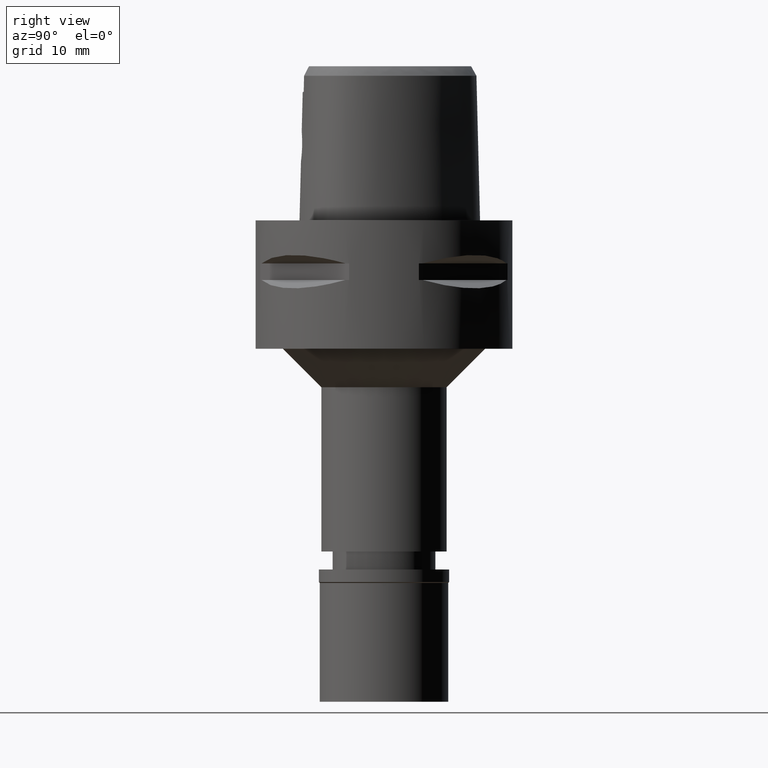
[diagram: clean part render]
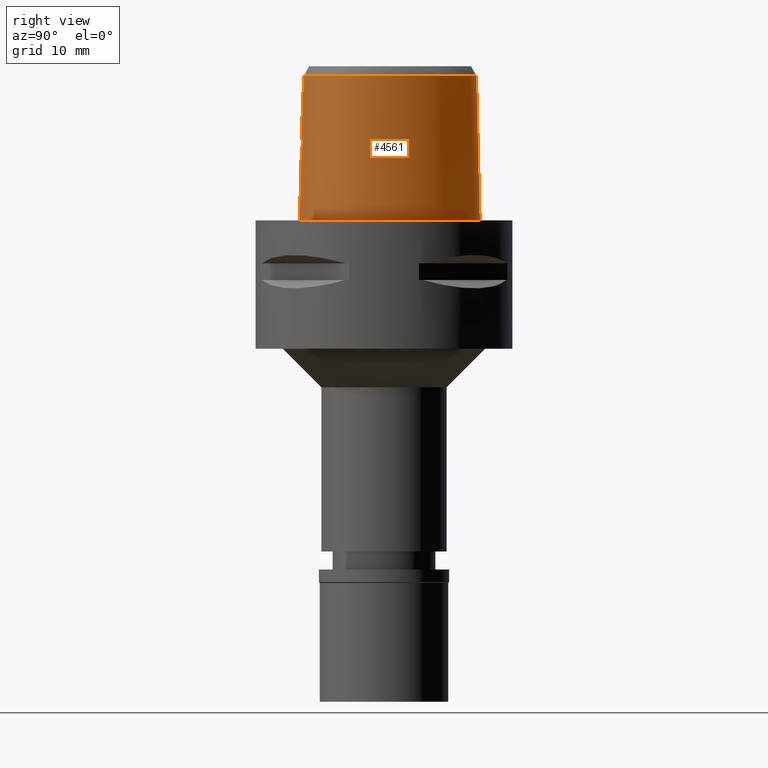
[diagram: same view with one face highlighted and labeled with its STEP entity id]
A machine part, right view. The second image highlights one B-rep face of the part: STEP entity #4561.
In plain terms, the highlighted face is a freeform B-spline surface patch.
Its self-contained STEP definition (entity closure, byte-faithful):
#19 = CARTESIAN_POINT ( 'NONE',  ( 13.62540811550000086, -0.2530730936667999753, 15.16397877979999897 ) ) ;
#32 = CARTESIAN_POINT ( 'NONE',  ( 10.46238780066600249, -9.543612998139392900, 22.52071729251863985 ) ) ;
#38 = CARTESIAN_POINT ( 'NONE',  ( 1.594059758625000267, 14.66589046200000190, 7.356781784261000823 ) ) ;
#50 = CARTESIAN_POINT ( 'NONE',  ( 3.782076377241596621, 14.19393594484588661, -3.214111920948718726E-07 ) ) ;
#93 = CARTESIAN_POINT ( 'NONE',  ( 12.52522393408639800, -8.173666410984072428, -3.214111920948718726E-07 ) ) ;
#149 = DIRECTION ( 'NONE',  ( 9.105538972004151152E-12, 0.02499051293209040084, -0.9996876883624159493 ) ) ;
#162 = CARTESIAN_POINT ( 'NONE',  ( 2.043463385705228230, -12.80871364514175781, 10.44374245704669946 ) ) ;
#167 = B_SPLINE_CURVE_WITH_KNOTS ( 'NONE', 3,
 ( #406, #4119, #1486, #2267, #1163, #3740, #1867, #93, #4074, #1534, #3360, #2637, #454, #1553, #4419, #3007, #1118, #3334, #50, #4485, #2241, #2987 ),
 .UNSPECIFIED., .F., .F.,
 ( 4, 1, 1, 1, 1, 1, 1, 1, 1, 1, 1, 1, 1, 1, 1, 1, 1, 1, 1, 4 ),
 ( 0.0000000000000000000, 0.08333333333314001112, 0.1666666666663000063, 0.2083333333328000192, 0.2499999999994000077, 0.2916666666659999962, 0.3124999999992999489, 0.3333333333325000369, 0.3541666666659000207, 0.3749999999990999977, 0.4166666666657000140, 0.4583333333321999992, 0.4999999999987999599, 0.5833333333318999614, 0.6666666666650999939, 0.7499999999983000265, 0.8333333333314000280, 0.9166666666646000605, 0.9583333333311000457, 1.000000000000000000 ),
 .UNSPECIFIED. ) ;
#177 = FACE_OUTER_BOUND ( 'NONE', #3406, .T. ) ;
#186 = CARTESIAN_POINT ( 'NONE',  ( -2.542051592981999524E-14, -12.93301545397000041, 9.199999999999999289 ) ) ;
#225 = CARTESIAN_POINT ( 'NONE',  ( -2.542051592981999524E-14, -12.93301545397000041, 9.199999999999999289 ) ) ;
#234 = CARTESIAN_POINT ( 'NONE',  ( 10.57640493357000011, -9.688930309367000504, 15.16397877979999897 ) ) ;
#257 = CARTESIAN_POINT ( 'NONE',  ( 1.039641961770999989, -12.80928545993999990, 15.16397877979999897 ) ) ;
#287 = CARTESIAN_POINT ( 'NONE',  ( 13.56059772727000023, -5.684126903878000903, 7.356781784261000823 ) ) ;
#326 = CARTESIAN_POINT ( 'NONE',  ( -0.2827498942773000179, 14.38452206130000022, 22.97117577534999810 ) ) ;
#351 = CARTESIAN_POINT ( 'NONE',  ( 13.87311580918000153, -4.342650423365999934, 7.356781784261000823 ) ) ;
#372 = ORIENTED_EDGE ( 'NONE', *, *, #1592, .F. ) ;
#373 = CARTESIAN_POINT ( 'NONE',  ( 1.636146738088311459, -12.77533106805134011, 13.11651252606773888 ) ) ;
#391 = B_SPLINE_SURFACE_WITH_KNOTS ( 'NONE', 3, 3, ( 
 ( #4286, #1671, #586, #4595 ),
 ( #3548, #1639, #1299, #936 ),
 ( #2754, #661, #257, #3877 ),
 ( #4673, #1323, #992, #2445 ),
 ( #914, #4569, #4258, #2093 ),
 ( #1276, #2730, #3924, #2393 ),
 ( #2048, #3524, #234, #612 ),
 ( #2369, #1381, #3849, #2834 ),
 ( #4307, #1717, #969, #2072 ),
 ( #557, #3177, #1696, #3154 ),
 ( #4618, #2017, #4646, #1355 ),
 ( #3573, #287, #1014, #2115 ),
 ( #2466, #351, #1430, #4063 ),
 ( #4009, #723, #1062, #395 ),
 ( #2212, #3687, #19, #2513 ),
 ( #1082, #1473, #3989, #3620 ),
 ( #1858, #2535, #2924, #1040 ),
 ( #2584, #3226, #1132, #3323 ),
 ( #701, #1455, #1790, #3249 ),
 ( #3967, #4714, #1768, #2489 ),
 ( #1818, #38, #2882, #680 ),
 ( #1403, #2191, #4356, #4693 ),
 ( #2159, #3278, #2855, #326 ),
 ( #3669, #1500, #768, #4403 ) ),
 .UNSPECIFIED., .F., .F., .F.,
 ( 4, 1, 1, 1, 1, 1, 1, 1, 1, 1, 1, 1, 1, 1, 1, 1, 1, 1, 1, 1, 1, 4 ),
 ( 4, 4 ),
 ( -0.01796457239586999807, 0.0000000000000000000, 0.08333333333314001112, 0.1666666666663000063, 0.2083333333328000192, 0.2499999999994000077, 0.2916666666659999962, 0.3124999999992999489, 0.3333333333325000369, 0.3541666666659000207, 0.3749999999990999977, 0.4166666666657000140, 0.4583333333321999992, 0.4999999999987999599, 0.5833333333318999614, 0.6666666666650999939, 0.7499999999983000265, 0.8333333333314000280, 0.9166666666646000605, 0.9583333333311000457, 1.000000000000000000, 1.011713651438000072 ),
 ( -3.262376966490000275E-08, 1.000001663811999952 ),
 .UNSPECIFIED. ) ;
#395 = CARTESIAN_POINT ( 'NONE',  ( 13.59718091291999897, -2.623279431593000144, 22.97117577534999810 ) ) ;
#406 = CARTESIAN_POINT ( 'NONE',  ( -1.171901982879999956E-13, -13.16299999999999848, 2.757053844486000457E-13 ) ) ;
#421 = VECTOR ( 'NONE', #149, 1000.000000000000227 ) ;
#454 = CARTESIAN_POINT ( 'NONE',  ( 14.17320397397294762, -2.619206249943720088, -3.214111920948718726E-07 ) ) ;
#458 = CARTESIAN_POINT ( 'NONE',  ( 12.82590900890182439, -6.531187914406362260, 22.52071729251863985 ) ) ;
#513 = EDGE_CURVE ( 'NONE', #4528, #2570, #601, .T. ) ;
#544 = ORIENTED_EDGE ( 'NONE', *, *, #2526, .T. ) ;
#545 = CARTESIAN_POINT ( 'NONE',  ( 1.869424949172659778, -12.83134063688184057, 10.15811452068828658 ) ) ;
#557 = CARTESIAN_POINT ( 'NONE',  ( 12.98066718340000136, -7.494391692616000356, -0.4504152112812999653 ) ) ;
#586 = CARTESIAN_POINT ( 'NONE',  ( -0.8566252981734000516, -12.76751132593999927, 15.16397877979999897 ) ) ;
#592 = CARTESIAN_POINT ( 'NONE',  ( 1.460959802937717100, -12.87242665810233078, 9.723111638592726536 ) ) ;
#601 = LINE ( 'NONE', #225, #2343 ) ;
#612 = CARTESIAN_POINT ( 'NONE',  ( 10.45540644817999976, -9.534715112828997974, 22.97117577534999810 ) ) ;
#619 = CARTESIAN_POINT ( 'NONE',  ( 2.174655026127970903, -12.75097664368962036, 12.25065586503894011 ) ) ;
#661 = CARTESIAN_POINT ( 'NONE',  ( 1.048704671848999848, -13.00466326873999989, 7.356781784261000823 ) ) ;
#680 = CARTESIAN_POINT ( 'NONE',  ( 1.513572644177999971, 14.28153450380999878, 22.97117577534999810 ) ) ;
#700 = CARTESIAN_POINT ( 'NONE',  ( 1.408052784000375146, -12.78604258398209836, 13.32559425419504784 ) ) ;
#701 = CARTESIAN_POINT ( 'NONE',  ( 6.379661312841999887, 12.67792013534999995, -0.4504152112812999653 ) ) ;
#711 = CARTESIAN_POINT ( 'NONE',  ( -1.260417588442999891E-08, -12.66301535847000004, 19.99999996345999875 ) ) ;
#722 = CARTESIAN_POINT ( 'NONE',  ( 1.684262171806062414, -12.77302273728515125, 13.06656659278256960 ) ) ;
#723 = CARTESIAN_POINT ( 'NONE',  ( 13.98872599469000022, -2.620510732994000058, 7.356781784261000823 ) ) ;
#768 = CARTESIAN_POINT ( 'NONE',  ( -0.4356961713192999408, 14.57076322518000033, 15.16397877979999897 ) ) ;
#829 = CARTESIAN_POINT ( 'NONE',  ( 4.736458210705729144, -12.13940339171348448, 22.52071729251864340 ) ) ;
#868 = CARTESIAN_POINT ( 'NONE',  ( 1.567234804671707282, -12.86297445961074892, 9.816357320232405925 ) ) ;
#899 = CARTESIAN_POINT ( 'NONE',  ( 2.108316059763356787, -12.79932254745118314, 10.57985993983337281 ) ) ;
#914 = CARTESIAN_POINT ( 'NONE',  ( 7.165542350034999508, -12.04243711666999950, -0.4504152112812999653 ) ) ;
#919 = EDGE_CURVE ( 'NONE', #3263, #3922, #4641, .T. ) ;
#926 = CARTESIAN_POINT ( 'NONE',  ( 2.603594716343999860, -12.50959097760000027, 20.00000007790999845 ) ) ;
#936 = CARTESIAN_POINT ( 'NONE',  ( -0.5664558460332999035, -12.58333781636999937, 22.97117577534999810 ) ) ;
#943 = CARTESIAN_POINT ( 'NONE',  ( 1.107777221481571761, -12.89898952628355921, 9.478752576675020691 ) ) ;
#950 = CARTESIAN_POINT ( 'NONE',  ( 3.014424016408352891, -12.39773933397613703, 22.52071729251864340 ) ) ;
#968 = CARTESIAN_POINT ( 'NONE',  ( 1.854517083051412163, -12.76478398343997256, 12.86296390897502206 ) ) ;
#969 = CARTESIAN_POINT ( 'NONE',  ( 12.21811952077999841, -7.950323104872999203, 15.16397877979999897 ) ) ;
#976 = CARTESIAN_POINT ( 'NONE',  ( 1.142660624072548092, -12.79660889248676092, 13.49746603115485577 ) ) ;
#992 = CARTESIAN_POINT ( 'NONE',  ( 3.976337288140999515, -12.54865314878999882, 15.16397877979999897 ) ) ;
#1014 = CARTESIAN_POINT ( 'NONE',  ( 13.37282181439999817, -5.628458994473000132, 15.16397877979999897 ) ) ;
#1040 = CARTESIAN_POINT ( 'NONE',  ( 11.00320932726000045, 6.352726147440999505, 22.97117577534999810 ) ) ;
#1061 = CARTESIAN_POINT ( 'NONE',  ( 1.706514786404052630, -12.77195056588757538, 13.04216762706118793 ) ) ;
#1062 = CARTESIAN_POINT ( 'NONE',  ( 13.79295345379999915, -2.621895082293000279, 15.16397877979999897 ) ) ;
#1082 = CARTESIAN_POINT ( 'NONE',  ( 13.22478982636999945, 2.964135532587000021, -0.4504152112812999653 ) ) ;
#1084 = CARTESIAN_POINT ( 'NONE',  ( 2.568703243657000090, -12.45023755174000080, 22.52071758139999957 ) ) ;
#1118 = CARTESIAN_POINT ( 'NONE',  ( 9.170754368918242250, 9.963637505208904344, -3.214111920948718726E-07 ) ) ;
#1131 = CARTESIAN_POINT ( 'NONE',  ( 2.021153119201027692, -12.75677398847741273, 12.60794142556711961 ) ) ;
#1132 = CARTESIAN_POINT ( 'NONE',  ( 8.879307827778999851, 9.717869281053999941, 15.16397877979999897 ) ) ;
#1163 = CARTESIAN_POINT ( 'NONE',  ( 9.354901137188432969, -10.96475156951069785, -3.214111920948718726E-07 ) ) ;
#1166 = CARTESIAN_POINT ( 'NONE',  ( 11.01301037806343963, 6.358384389067415654, 22.52071729251863985 ) ) ;
#1169 = CARTESIAN_POINT ( 'NONE',  ( -6.596042641662999913E-11, 14.40001989798000182, 22.52071729252999788 ) ) ;
#1187 = CARTESIAN_POINT ( 'NONE',  ( 9.075996545096330692, -10.47368666716507946, 22.52071729251863985 ) ) ;
#1207 = CARTESIAN_POINT ( 'NONE',  ( 0.8690674297352856126, -12.91199189238994194, 9.370505741517995091 ) ) ;
#1212 = CARTESIAN_POINT ( 'NONE',  ( 13.19588016803378672, -5.576003003767454835, 22.52071729251863985 ) ) ;
#1254 = CARTESIAN_POINT ( 'NONE',  ( 2.093435941504518283, -12.80154818977980469, 10.54659307499018794 ) ) ;
#1276 = CARTESIAN_POINT ( 'NONE',  ( 9.360479235688000443, -10.97457287928000014, -0.4504152112812999653 ) ) ;
#1283 = CARTESIAN_POINT ( 'NONE',  ( 1.493711519974093127, -12.86960986600499623, 9.750504243735724330 ) ) ;
#1299 = CARTESIAN_POINT ( 'NONE',  ( -0.5714334897002000258, -12.77845914096999991, 15.16397877979999897 ) ) ;
#1308 = CARTESIAN_POINT ( 'NONE',  ( 0.7506047745461016385, -12.91741682039676498, 9.325319817459758909 ) ) ;
#1323 = CARTESIAN_POINT ( 'NONE',  ( 4.010857420997999689, -12.74186241872000025, 7.356781784261000823 ) ) ;
#1331 = CARTESIAN_POINT ( 'NONE',  ( 2.129813370590927679, -12.75234797374024609, 12.36828487053688264 ) ) ;
#1340 = CARTESIAN_POINT ( 'NONE',  ( -1.260417588442999891E-08, -12.66301535847000004, 19.99999996345999875 ) ) ;
#1355 = CARTESIAN_POINT ( 'NONE',  ( 12.81560188488999863, -6.526604645489999967, 22.97117577534999810 ) ) ;
#1381 = CARTESIAN_POINT ( 'NONE',  ( 11.70289716962999904, -8.901758670668002082, 7.356781784261000823 ) ) ;
#1403 = CARTESIAN_POINT ( 'NONE',  ( 0.3916487676538999985, 14.99059189984999918, -0.4504152112812999653 ) ) ;
#1425 = EDGE_CURVE ( 'NONE', #2570, #4697, #167, .T. ) ;
#1430 = CARTESIAN_POINT ( 'NONE',  ( 13.67906232944000067, -4.314970324183000194, 15.16397877979999897 ) ) ;
#1454 = CARTESIAN_POINT ( 'NONE',  ( 0.8979950358144439537, -12.80460331550573372, 13.61747047128233312 ) ) ;
#1455 = CARTESIAN_POINT ( 'NONE',  ( 6.258002255787000756, 12.52314195592000168, 7.356781784261000823 ) ) ;
#1472 = CARTESIAN_POINT ( 'NONE',  ( 1.900109215926363948, -12.76256732845277675, 12.79816543667886819 ) ) ;
#1473 = CARTESIAN_POINT ( 'NONE',  ( 13.04019925743000030, 2.897436301087999766, 7.356781784261000823 ) ) ;
#1486 = CARTESIAN_POINT ( 'NONE',  ( 4.043386009150722771, -12.92392500795434529, -3.214111920948718726E-07 ) ) ;
#1499 = CARTESIAN_POINT ( 'NONE',  ( 2.286485425363378177, -12.75134569601234880, 11.79083204285286435 ) ) ;
#1500 = CARTESIAN_POINT ( 'NONE',  ( -0.4475516923967000071, 14.76556410335999914, 7.356781784261000823 ) ) ;
#1534 = CARTESIAN_POINT ( 'NONE',  ( 13.34121472101703354, -6.760328909519927265, -3.214111920948718726E-07 ) ) ;
#1538 = CARTESIAN_POINT ( 'NONE',  ( 6.021703607729936181, 12.22251596527296869, 22.52071729251863985 ) ) ;
#1553 = CARTESIAN_POINT ( 'NONE',  ( 14.00068088812223444, -0.1863062485848895056, -3.214111920948718726E-07 ) ) ;
#1556 = CARTESIAN_POINT ( 'NONE',  ( 11.42690036410999177, -8.639965949824006231, 22.52071729251863985 ) ) ;
#1592 = EDGE_CURVE ( 'NONE', #4528, #3307, #3204, .T. ) ;
#1601 = CARTESIAN_POINT ( 'NONE',  ( 1.727977423403443513, -12.84715031218480519, 9.980214359576857319 ) ) ;
#1620 = CARTESIAN_POINT ( 'NONE',  ( 0.5113403790312409658, -12.92585909161381963, 9.256304699929891910 ) ) ;
#1628 = DIRECTION ( 'NONE',  ( 0.0000000000000000000, -0.02499051295424905769, -0.9996876883618621701 ) ) ;
#1639 = CARTESIAN_POINT ( 'NONE',  ( -0.5764111333670000059, -12.97358046556000133, 7.356781784261000823 ) ) ;
#1645 = ORIENTED_EDGE ( 'NONE', *, *, #919, .T. ) ;
#1647 = CARTESIAN_POINT ( 'NONE',  ( 1.951316193587585124, -12.82105448168983131, 10.28025765310058759 ) ) ;
#1652 = ORIENTED_EDGE ( 'NONE', *, *, #2213, .T. ) ;
#1671 = CARTESIAN_POINT ( 'NONE',  ( -0.8641029054148000599, -12.96254439643000111, 7.356781784261000823 ) ) ;
#1679 = CARTESIAN_POINT ( 'NONE',  ( 0.6955382435542086794, -12.91959727455216900, 9.307353099921993334 ) ) ;
#1696 = CARTESIAN_POINT ( 'NONE',  ( 12.64198534283000086, -7.298853640276999677, 15.16397877979999897 ) ) ;
#1702 = CARTESIAN_POINT ( 'NONE',  ( 0.5839158949211584737, -12.81370532052833155, 13.74793500496120124 ) ) ;
#1714 = VERTEX_POINT ( 'NONE', #3069 ) ;
#1717 = CARTESIAN_POINT ( 'NONE',  ( 12.37623268072000116, -8.065311735285000339, 7.356781784261000823 ) ) ;
#1726 = CARTESIAN_POINT ( 'NONE',  ( 2.295866016301516765, -12.76119921827123527, 11.35768768159920761 ) ) ;
#1768 = CARTESIAN_POINT ( 'NONE',  ( 3.618945488332999894, 13.84737974138000105, 15.16397877979999897 ) ) ;
#1772 = B_SPLINE_CURVE_WITH_KNOTS ( 'NONE', 3,
 ( #711, #2870, #4027, #3238 ),
 .UNSPECIFIED., .F., .F.,
 ( 4, 4 ),
 ( 0.0000000000000000000, 1.000000000000000000 ),
 .UNSPECIFIED. ) ;
#1790 = CARTESIAN_POINT ( 'NONE',  ( 6.136343198732999937, 12.36836377648999985, 15.16397877979999897 ) ) ;
#1818 = CARTESIAN_POINT ( 'NONE',  ( 1.634303315848000038, 14.85806844110000036, -0.4504152112812999653 ) ) ;
#1837 = CARTESIAN_POINT ( 'NONE',  ( 0.2807011223801613164, -12.81802318095999738, 13.79999999999999716 ) ) ;
#1842 = CARTESIAN_POINT ( 'NONE',  ( 2.580559080356283008, -12.46988838676011468, 21.68047841357000038 ) ) ;
#1854 = CARTESIAN_POINT ( 'NONE',  ( 1.515894610911892260, 14.29262276006259746, 22.52071729251863985 ) ) ;
#1858 = CARTESIAN_POINT ( 'NONE',  ( 11.51281501103000160, 6.646926448089000239, -0.4504152112812999653 ) ) ;
#1867 = CARTESIAN_POINT ( 'NONE',  ( 11.83679699787978556, -9.028767388362165747, -3.214111920948718726E-07 ) ) ;
#1904 = ORIENTED_EDGE ( 'NONE', *, *, #3579, .F. ) ;
#1918 = CARTESIAN_POINT ( 'NONE',  ( 12.48241502960322968, -7.206725676734410335, 22.52071729251863985 ) ) ;
#1956 = CARTESIAN_POINT ( 'NONE',  ( 1.298081316895669524, -12.88549019284528008, 9.599832172041310230 ) ) ;
#1980 = CARTESIAN_POINT ( 'NONE',  ( 1.607887411604793204, -12.85912041386440130, 9.855364509025404729 ) ) ;
#2002 = CARTESIAN_POINT ( 'NONE',  ( 2.230462555877945174, -12.77898657628070112, 10.91885181785458236 ) ) ;
#2017 = CARTESIAN_POINT ( 'NONE',  ( 13.17288119333999852, -6.685476038425000489, 7.356781784261000823 ) ) ;
#2048 = CARTESIAN_POINT ( 'NONE',  ( 10.81840190432999904, -9.997360702443998548, -0.4504152112812999653 ) ) ;
#2056 = CARTESIAN_POINT ( 'NONE',  ( 1.617438359909708856, -12.85819787466013864, 9.864768670370320791 ) ) ;
#2072 = CARTESIAN_POINT ( 'NONE',  ( 12.06000636083999922, -7.835334474460998955, 22.97117577534999810 ) ) ;
#2079 = CARTESIAN_POINT ( 'NONE',  ( 1.209086969383211141, -12.79412523546007563, 13.45817784083520507 ) ) ;
#2093 = CARTESIAN_POINT ( 'NONE',  ( 6.965032192404999378, -11.48890079967999966, 22.97117577534999810 ) ) ;
#2115 = CARTESIAN_POINT ( 'NONE',  ( 13.18504590154000056, -5.572791085069000339, 22.97117577534999810 ) ) ;
#2158 = CARTESIAN_POINT ( 'NONE',  ( 1.043973006521108360, -12.80001853782782462, 13.54975762555262264 ) ) ;
#2159 = CARTESIAN_POINT ( 'NONE',  ( -0.3063166189395000183, 14.96966816951999846, -0.4504152112812999653 ) ) ;
#2171 = ORIENTED_EDGE ( 'NONE', *, *, #1425, .T. ) ;
#2190 = CARTESIAN_POINT ( 'NONE',  ( 1.661097454703123422, -12.77413506297896362, 13.09087457277828115 ) ) ;
#2191 = CARTESIAN_POINT ( 'NONE',  ( 0.3814807463334999871, 14.79500496776999974, 7.356781784261000823 ) ) ;
#2212 = CARTESIAN_POINT ( 'NONE',  ( 14.01182759594999894, -0.1843230764258000087, -0.4504152112812999653 ) ) ;
#2213 = EDGE_CURVE ( 'NONE', #1714, #2407, #2657, .T. ) ;
#2235 = CARTESIAN_POINT ( 'NONE',  ( 2.592189410844740749, -12.48967527515265097, 20.84023924574000119 ) ) ;
#2241 = CARTESIAN_POINT ( 'NONE',  ( 0.5439938579168607236, 14.96300000804526498, -3.214111920948718726E-07 ) ) ;
#2267 = CARTESIAN_POINT ( 'NONE',  ( 7.161686388216766730, -12.03179219509339681, -3.214111920948718726E-07 ) ) ;
#2271 = CARTESIAN_POINT ( 'NONE',  ( 3.539803247036281242, 13.67924950644368920, 22.52071729251863985 ) ) ;
#2302 = CARTESIAN_POINT ( 'NONE',  ( 0.8463630567563916740, -12.91308736094397425, 9.361346884265564938 ) ) ;
#2332 = CARTESIAN_POINT ( 'NONE',  ( 0.9870234129898216580, -12.90617499169803040, 9.419215489519116247 ) ) ;
#2337 = CARTESIAN_POINT ( 'NONE',  ( 2.568703243657000090, -12.45023755174000080, 22.52071758139999957 ) ) ;
#2343 = VECTOR ( 'NONE', #1628, 1000.000000000000000 ) ;
#2356 = CARTESIAN_POINT ( 'NONE',  ( 1.591641127645536224, -12.86067053571080443, 9.839636682121154720 ) ) ;
#2369 = CARTESIAN_POINT ( 'NONE',  ( 11.84499494034000122, -9.036543426413999214, -0.4504152112812999653 ) ) ;
#2377 = CARTESIAN_POINT ( 'NONE',  ( 0.8599890503359368665, -12.91243217640209018, 9.366823301356212994 ) ) ;
#2393 = CARTESIAN_POINT ( 'NONE',  ( 9.070417906726000012, -10.46386440684999997, 22.97117577534999810 ) ) ;
#2399 = CARTESIAN_POINT ( 'NONE',  ( 1.362992585940647317, -12.88053689247975520, 9.645493491656447205 ) ) ;
#2407 = VERTEX_POINT ( 'NONE', #1340 ) ;
#2427 = CARTESIAN_POINT ( 'NONE',  ( 0.8913097515742632870, -12.80479973338801969, 13.62029918993368582 ) ) ;
#2445 = CARTESIAN_POINT ( 'NONE',  ( 3.941817155282999252, -12.35544387885999917, 22.97117577534999810 ) ) ;
#2466 = CARTESIAN_POINT ( 'NONE',  ( 14.06716928892000062, -4.370330522549000563, -0.4504152112812999653 ) ) ;
#2489 = CARTESIAN_POINT ( 'NONE',  ( 3.534957309685000215, 13.66895476911999907, 22.97117577534999810 ) ) ;
#2512 = CARTESIAN_POINT ( 'NONE',  ( 2.225429295877805913, -12.75012210877847885, 12.08593180704468928 ) ) ;
#2513 = CARTESIAN_POINT ( 'NONE',  ( 13.43219837528000049, -0.2874481022873000557, 22.97117577534999810 ) ) ;
#2526 = EDGE_CURVE ( 'NONE', #2407, #3307, #1772, .T. ) ;
#2534 = CARTESIAN_POINT ( 'NONE',  ( 2.192541761835642422, -12.75060236087980847, 12.19586171828252930 ) ) ;
#2535 = CARTESIAN_POINT ( 'NONE',  ( 11.34294644977000033, 6.548859681205999372, 7.356781784261000823 ) ) ;
#2559 = CARTESIAN_POINT ( 'NONE',  ( 2.299158587325217606, -12.75906338818680652, 11.42842241198872344 ) ) ;
#2570 = VERTEX_POINT ( 'NONE', #4420 ) ;
#2584 = CARTESIAN_POINT ( 'NONE',  ( 9.179411190512000829, 9.970937546107000671, -0.4504152112812999653 ) ) ;
#2618 = CARTESIAN_POINT ( 'NONE',  ( 13.60847656765949054, -2.623199557614447563, 22.52071729251863985 ) ) ;
#2636 = ORIENTED_EDGE ( 'NONE', *, *, #513, .T. ) ;
#2637 = CARTESIAN_POINT ( 'NONE',  ( 14.05597390384698286, -4.368733594889532057, -3.214111920948718726E-07 ) ) ;
#2648 = CARTESIAN_POINT ( 'NONE',  ( 1.391669062212000189E-10, 14.96299999995999919, 2.762789996779999925E-13 ) ) ;
#2656 = CARTESIAN_POINT ( 'NONE',  ( 0.8747345760824792871, -12.91171422237656863, 9.372829819806538509 ) ) ;
#2657 = B_SPLINE_CURVE_WITH_KNOTS ( 'NONE', 3,
 ( #926, #3536, #3164, #3841 ),
 .UNSPECIFIED., .F., .F.,
 ( 4, 4 ),
 ( 0.0000000000000000000, 1.000000000000000000 ),
 .UNSPECIFIED. ) ;
#2730 = CARTESIAN_POINT ( 'NONE',  ( 9.263792126033999708, -10.80433672179999860, 7.356781784261000823 ) ) ;
#2738 = CARTESIAN_POINT ( 'NONE',  ( 2.283291726770522168, -12.76615336162676329, 11.21397804798649389 ) ) ;
#2754 = CARTESIAN_POINT ( 'NONE',  ( 1.057767381926000061, -13.20004107752999900, -0.4504152112812999653 ) ) ;
#2787 = CARTESIAN_POINT ( 'NONE',  ( 2.127531297605238070, -12.75242672595457805, 12.37385599951361215 ) ) ;
#2813 = CARTESIAN_POINT ( 'NONE',  ( 2.568703243657000090, -12.45023755174000080, 22.52071758139999957 ) ) ;
#2817 = CARTESIAN_POINT ( 'NONE',  ( 2.243503838786559346, -12.75015969206865130, 12.01219160939755604 ) ) ;
#2834 = CARTESIAN_POINT ( 'NONE',  ( 11.41870162822000090, -8.632189159176000715, 22.97117577534999810 ) ) ;
#2855 = CARTESIAN_POINT ( 'NONE',  ( -0.2906054691647000365, 14.57957076403999963, 15.16397877979999897 ) ) ;
#2870 = CARTESIAN_POINT ( 'NONE',  ( -4.211259429664287857E-09, -12.71469678372655032, 17.93333361273087334 ) ) ;
#2882 = CARTESIAN_POINT ( 'NONE',  ( 1.553816201400999963, 14.47371248289999990, 15.16397877979999897 ) ) ;
#2923 = CARTESIAN_POINT ( 'NONE',  ( 2.300118713600481701, -12.75356737073905400, 11.64310838016456806 ) ) ;
#2924 = CARTESIAN_POINT ( 'NONE',  ( 11.17307788851999995, 6.450792914323000282, 15.16397877979999897 ) ) ;
#2987 = CARTESIAN_POINT ( 'NONE',  ( 1.391669062212000189E-10, 14.96299999995999919, 2.762789996779999925E-13 ) ) ;
#2991 = CARTESIAN_POINT ( 'NONE',  ( 8.737913805848643634, 9.598635895952353891, 22.52071729251863985 ) ) ;
#2993 = B_SPLINE_CURVE_WITH_KNOTS ( 'NONE', 3,
 ( #3688, #2235, #1842, #1084 ),
 .UNSPECIFIED., .F., .F.,
 ( 4, 4 ),
 ( 0.0000000000000000000, 1.000000000000000000 ),
 .UNSPECIFIED. ) ;
#3007 = CARTESIAN_POINT ( 'NONE',  ( 11.50301490871979837, 6.641268754036866007, -3.214111920948718726E-07 ) ) ;
#3036 = CARTESIAN_POINT ( 'NONE',  ( 0.5851900645696058723, -12.92362272837751469, 9.274365687045218465 ) ) ;
#3058 = CARTESIAN_POINT ( 'NONE',  ( 1.989864840159478510, -12.81604061845431275, 10.34408982141710176 ) ) ;
#3069 = CARTESIAN_POINT ( 'NONE',  ( 2.603594716343999860, -12.50959097760000027, 20.00000007790999845 ) ) ;
#3154 = CARTESIAN_POINT ( 'NONE',  ( 12.47264442254999928, -7.201084614107000625, 22.97117577534999810 ) ) ;
#3164 = CARTESIAN_POINT ( 'NONE',  ( 0.8728598500693878215, -12.66303358566417714, 20.00000039696020337 ) ) ;
#3177 = CARTESIAN_POINT ( 'NONE',  ( 12.81132626312000156, -7.396622666446000416, 7.356781784261000823 ) ) ;
#3204 = B_SPLINE_CURVE_WITH_KNOTS ( 'NONE', 3,
 ( #186, #4238, #3454, #1620, #3036, #1679, #1308, #3432, #2302, #2377, #1207, #2656, #2332, #943, #1956, #2399, #592, #1283, #3810, #868, #2356, #1980, #2056, #4190, #1601, #4551, #545, #1647, #3058, #162, #4529, #1254, #899, #3836, #2002, #4577, #2738, #3857, #1726, #2559, #3909, #2923, #1499, #2817, #2512, #2534, #619, #4040, #3322, #3300, #1331, #2787, #4355, #1131, #1472, #968, #3530, #4007, #1061, #722, #2190, #4062, #373, #4268, #700, #2079, #976, #2158, #4625, #3667, #3988, #1454, #2427, #1702, #1837, #3642 ),
 .UNSPECIFIED., .F., .F.,
 ( 4, 2, 2, 1, 1, 1, 2, 2, 2, 2, 2, 1, 2, 2, 2, 2, 2, 2, 2, 2, 2, 2, 2, 2, 2, 1, 1, 1, 2, 2, 2, 2, 2, 1, 2, 2, 2, 2, 1, 1, 2, 2, 4 ),
 ( 0.0000000000000000000, 0.06250000000000006939, 0.09375000000000002776, 0.1093750000000000139, 0.1171874999999999861, 0.1210937500000000000, 0.1230468749999998890, 0.1249999999999997780, 0.1875000000000026645, 0.2187500000000042744, 0.2343750000000052458, 0.2421875000000058009, 0.2460937500000060785, 0.2500000000000063283, 0.2812500000000062728, 0.3125000000000061617, 0.3437500000000061617, 0.3593750000000061617, 0.3750000000000062172, 0.4375000000000073275, 0.4687500000000074940, 0.4843750000000072720, 0.5000000000000069944, 0.5625000000000037748, 0.5937500000000024425, 0.6093750000000017764, 0.6171875000000017764, 0.6210937500000014433, 0.6230468750000016653, 0.6250000000000018874, 0.6875000000000023315, 0.7187500000000024425, 0.7343750000000025535, 0.7421875000000028866, 0.7460937500000031086, 0.7500000000000034417, 0.8125000000000024425, 0.8437500000000019984, 0.8593750000000018874, 0.8671875000000017764, 0.8710937500000016653, 0.8750000000000015543, 1.000000000000000000 ),
 .UNSPECIFIED. ) ;
#3226 = CARTESIAN_POINT ( 'NONE',  ( 9.029359509145001184, 9.844403413580000262, 7.356781784261000823 ) ) ;
#3238 = CARTESIAN_POINT ( 'NONE',  ( 0.0000000000000000000, -12.81802318095999915, 13.79999999999999893 ) ) ;
#3249 = CARTESIAN_POINT ( 'NONE',  ( 6.014684141678999119, 12.21358559705999980, 22.97117577534999810 ) ) ;
#3263 = VERTEX_POINT ( 'NONE', #4331 ) ;
#3278 = CARTESIAN_POINT ( 'NONE',  ( -0.2984610440520999997, 14.77461946677999904, 7.356781784261000823 ) ) ;
#3300 = CARTESIAN_POINT ( 'NONE',  ( 2.133463040823848189, -12.75222410475733170, 12.35927822234116924 ) ) ;
#3307 = VERTEX_POINT ( 'NONE', #4650 ) ;
#3318 = CARTESIAN_POINT ( 'NONE',  ( -6.596042641662999913E-11, 14.40001989798000182, 22.52071729252999788 ) ) ;
#3322 = CARTESIAN_POINT ( 'NONE',  ( 2.138891804679723396, -12.75204249368168163, 12.34575813156915736 ) ) ;
#3323 = CARTESIAN_POINT ( 'NONE',  ( 8.729256146413000295, 9.591335148527001309, 22.97117577534999810 ) ) ;
#3334 = CARTESIAN_POINT ( 'NONE',  ( 6.372642526097357596, 12.66899063137026893, -3.214111920948718726E-07 ) ) ;
#3360 = CARTESIAN_POINT ( 'NONE',  ( 13.73754042211853488, -5.736583205416788012, -3.214111920948718726E-07 ) ) ;
#3365 = CARTESIAN_POINT ( 'NONE',  ( 0.5039711947944928161, 14.40001989752726175, 22.52071729251863985 ) ) ;
#3387 = CARTESIAN_POINT ( 'NONE',  ( 12.06912915025889710, -7.841969071234689004, 22.52071729251863985 ) ) ;
#3406 = EDGE_LOOP ( 'NONE', ( #1904, #1645, #3540, #1652, #544, #372, #2636, #2171 ) ) ;
#3432 = CARTESIAN_POINT ( 'NONE',  ( 0.8145125421449325165, -12.91457943454070012, 9.348898823461938790 ) ) ;
#3441 = LINE ( 'NONE', #1169, #421 ) ;
#3454 = CARTESIAN_POINT ( 'NONE',  ( 0.2902039409409304382, -12.93122636338095610, 9.213445385782277341 ) ) ;
#3524 = CARTESIAN_POINT ( 'NONE',  ( 10.69740341895000135, -9.843145505905999570, 7.356781784261000823 ) ) ;
#3530 = CARTESIAN_POINT ( 'NONE',  ( 1.777128131591720228, -12.76853727841390196, 12.96066480105116270 ) ) ;
#3536 = CARTESIAN_POINT ( 'NONE',  ( 1.745775296001548016, -12.61172358491084466, 20.00000039696020337 ) ) ;
#3540 = ORIENTED_EDGE ( 'NONE', *, *, #4068, .F. ) ;
#3548 = CARTESIAN_POINT ( 'NONE',  ( -0.5813887770339000172, -13.16870179016000186, -0.4504152112812999653 ) ) ;
#3573 = CARTESIAN_POINT ( 'NONE',  ( 13.74837364013000141, -5.739794813282999009, -0.4504152112812999653 ) ) ;
#3579 = EDGE_CURVE ( 'NONE', #3263, #4697, #3441, .T. ) ;
#3620 = CARTESIAN_POINT ( 'NONE',  ( 12.67101811956999846, 2.764037838091000232, 22.97117577534999810 ) ) ;
#3642 = CARTESIAN_POINT ( 'NONE',  ( 0.0000000000000000000, -12.81802318095999915, 13.79999999999999893 ) ) ;
#3667 = CARTESIAN_POINT ( 'NONE',  ( 0.9381876973383260765, -12.80340306008582196, 13.60008248094646888 ) ) ;
#3669 = CARTESIAN_POINT ( 'NONE',  ( -0.4594072134741000180, 14.96036498154000149, -0.4504152112812999653 ) ) ;
#3682 = CARTESIAN_POINT ( 'NONE',  ( 12.68166859856682471, 2.767886240359284322, 22.52071729251863985 ) ) ;
#3687 = CARTESIAN_POINT ( 'NONE',  ( 13.81861785572999857, -0.2186980850463000337, 7.356781784261000823 ) ) ;
#3688 = CARTESIAN_POINT ( 'NONE',  ( 2.603594716343999860, -12.50959097760000027, 20.00000007790999845 ) ) ;
#3740 = CARTESIAN_POINT ( 'NONE',  ( 10.81142122746248901, -9.988463678223318709, -3.214111920948718726E-07 ) ) ;
#3746 = CARTESIAN_POINT ( 'NONE',  ( 13.44334616193088650, -0.2854647381888492652, 22.52071729251863985 ) ) ;
#3810 = CARTESIAN_POINT ( 'NONE',  ( 1.542743282436318752, -12.86521460690171814, 9.794004530773863237 ) ) ;
#3836 = CARTESIAN_POINT ( 'NONE',  ( 2.186354490230978609, -12.78715814037339626, 10.76765892241432709 ) ) ;
#3841 = CARTESIAN_POINT ( 'NONE',  ( -1.260417588442999891E-08, -12.66301535847000004, 19.99999996345999875 ) ) ;
#3849 = CARTESIAN_POINT ( 'NONE',  ( 11.56079939892999953, -8.766973914921999622, 15.16397877979999897 ) ) ;
#3857 = CARTESIAN_POINT ( 'NONE',  ( 2.293385494867744789, -12.76236463091154683, 11.32198205547385506 ) ) ;
#3877 = CARTESIAN_POINT ( 'NONE',  ( 1.030579251693999998, -12.61390765113999990, 22.97117577534999810 ) ) ;
#3909 = CARTESIAN_POINT ( 'NONE',  ( 2.299969345384927699, -12.75813322093607027, 11.46185367828802804 ) ) ;
#3922 = VERTEX_POINT ( 'NONE', #2813 ) ;
#3924 = CARTESIAN_POINT ( 'NONE',  ( 9.167105016379998972, -10.63410056432999973, 15.16397877979999897 ) ) ;
#3946 = CARTESIAN_POINT ( 'NONE',  ( -2.542051592981999524E-14, -12.93301545397000041, 9.199999999999999289 ) ) ;
#3967 = CARTESIAN_POINT ( 'NONE',  ( 3.786921845629000138, 14.20422968589999790, -0.4504152112812999653 ) ) ;
#3988 = CARTESIAN_POINT ( 'NONE',  ( 0.9140504597120601149, -12.80412716134025430, 13.61058950016344582 ) ) ;
#3989 = CARTESIAN_POINT ( 'NONE',  ( 12.85560868849999849, 2.830737069589000399, 15.16397877979999897 ) ) ;
#4007 = CARTESIAN_POINT ( 'NONE',  ( 1.749832844621748595, -12.76985976215405572, 12.99331170241439359 ) ) ;
#4009 = CARTESIAN_POINT ( 'NONE',  ( 14.18449853558000129, -2.619126383695000282, -0.4504152112812999653 ) ) ;
#4027 = CARTESIAN_POINT ( 'NONE',  ( -4.220979886582651120E-09, -12.76635998234184122, 15.86666680636541749 ) ) ;
#4040 = CARTESIAN_POINT ( 'NONE',  ( 2.151238930190031429, -12.75164808129624205, 12.31414270909390574 ) ) ;
#4062 = CARTESIAN_POINT ( 'NONE',  ( 1.645449367504334903, -12.77488553661844328, 13.10705414946518665 ) ) ;
#4063 = CARTESIAN_POINT ( 'NONE',  ( 13.48500884969999980, -4.287290225000000454, 22.97117577534999810 ) ) ;
#4068 = EDGE_CURVE ( 'NONE', #1714, #3922, #2993, .T. ) ;
#4074 = CARTESIAN_POINT ( 'NONE',  ( 12.97089752189382317, -7.488751175900437929, -3.214111920948718726E-07 ) ) ;
#4119 = CARTESIAN_POINT ( 'NONE',  ( 1.347795336384674192, -13.16300000803088999, -3.214111920948718726E-07 ) ) ;
#4124 = CARTESIAN_POINT ( 'NONE',  ( 6.968888527418696022, -11.49954675151483663, 22.52071729251863985 ) ) ;
#4190 = CARTESIAN_POINT ( 'NONE',  ( 1.677338744211443133, -12.85235830105390065, 9.924503536723275232 ) ) ;
#4238 = CARTESIAN_POINT ( 'NONE',  ( 0.1433742188724518862, -12.93301545397000396, 9.200000000000001066 ) ) ;
#4258 = CARTESIAN_POINT ( 'NONE',  ( 7.031868911614999718, -11.67341290533999931, 15.16397877979999897 ) ) ;
#4268 = CARTESIAN_POINT ( 'NONE',  ( 1.523028941585233609, -12.78074262657525928, 13.23006938842576652 ) ) ;
#4286 = CARTESIAN_POINT ( 'NONE',  ( -0.8715805126561999572, -13.15757746691000030, -0.4504152112812999653 ) ) ;
#4307 = CARTESIAN_POINT ( 'NONE',  ( 12.53434584064999946, -8.180300365697000586, -0.4504152112812999653 ) ) ;
#4331 = CARTESIAN_POINT ( 'NONE',  ( -6.596042641662999913E-11, 14.40001989798000182, 22.52071729252999788 ) ) ;
#4355 = CARTESIAN_POINT ( 'NONE',  ( 2.080890816681221445, -12.75405392847548569, 12.48689062667896188 ) ) ;
#4356 = CARTESIAN_POINT ( 'NONE',  ( 0.3713127250130999757, 14.59941803569999941, 15.16397877979999897 ) ) ;
#4403 = CARTESIAN_POINT ( 'NONE',  ( -0.4238406502418999855, 14.37596234700999887, 22.97117577534999810 ) ) ;
#4419 = CARTESIAN_POINT ( 'NONE',  ( 13.21414037806895792, 2.960287502746432153, -3.214111920948718726E-07 ) ) ;
#4420 = CARTESIAN_POINT ( 'NONE',  ( -1.171901982879999956E-13, -13.16299999999999848, 2.757053844486000457E-13 ) ) ;
#4485 = CARTESIAN_POINT ( 'NONE',  ( 1.631981573813616304, 14.84698125791135581, -3.214111920948718726E-07 ) ) ;
#4491 = CARTESIAN_POINT ( 'NONE',  ( 13.49620531830731629, -4.288887307216535660, 22.52071729251863985 ) ) ;
#4528 = VERTEX_POINT ( 'NONE', #3946 ) ;
#4529 = CARTESIAN_POINT ( 'NONE',  ( 2.060625410429664406, -12.80630362429435820, 10.47760979869173781 ) ) ;
#4551 = CARTESIAN_POINT ( 'NONE',  ( 1.823556130522963725, -12.83669982089731398, 10.09632717221551879 ) ) ;
#4561 = ADVANCED_FACE ( 'NONE', ( #177 ), #391, .T. ) ;
#4569 = CARTESIAN_POINT ( 'NONE',  ( 7.098705630825000057, -11.85792501100999807, 7.356781784261000823 ) ) ;
#4577 = CARTESIAN_POINT ( 'NONE',  ( 2.273024517919945975, -12.76906917249595885, 11.14078746314901203 ) ) ;
#4595 = CARTESIAN_POINT ( 'NONE',  ( -0.8491476909321000743, -12.57247825546000009, 22.97117577534999810 ) ) ;
#4618 = CARTESIAN_POINT ( 'NONE',  ( 13.35152084755999979, -6.764911734892000261, -0.4504152112812999653 ) ) ;
#4625 = CARTESIAN_POINT ( 'NONE',  ( 0.9948637765814553058, -12.80164440044861252, 13.57424493532782073 ) ) ;
#4641 = B_SPLINE_CURVE_WITH_KNOTS ( 'NONE', 3,
 ( #3318, #3365, #1854, #2271, #1538, #2991, #1166, #3682, #3746, #2618, #4491, #1212, #458, #1918, #3387, #1556, #32, #1187, #4124, #829, #950, #2337 ),
 .UNSPECIFIED., .F., .F.,
 ( 4, 1, 1, 1, 1, 1, 1, 1, 1, 1, 1, 1, 1, 1, 1, 1, 1, 1, 1, 4 ),
 ( 0.0000000000000000000, 0.04407253041122537185, 0.08814506081991220487, 0.1762901216374974656, 0.2644351824549769359, 0.3525802432725622104, 0.4407253040901474850, 0.5288703649076269553, 0.5729428953164196203, 0.6170154257251063701, 0.6610879561338989241, 0.6831242213381895079, 0.7051604865426915891, 0.7271967517469822839, 0.7492330169513784499, 0.7933055473601710039, 0.8373780777689636690, 0.8814506081776505297, 0.9695956689951934493, 1.000000000000000000 ),
 .UNSPECIFIED. ) ;
#4646 = CARTESIAN_POINT ( 'NONE',  ( 12.99424153912000079, -6.606040341957999829, 15.16397877979999897 ) ) ;
#4650 = CARTESIAN_POINT ( 'NONE',  ( 0.0000000000000000000, -12.81802318095999915, 13.79999999999999893 ) ) ;
#4673 = CARTESIAN_POINT ( 'NONE',  ( 4.045377553855999508, -12.93507168865000168, -0.4504152112812999653 ) ) ;
#4693 = CARTESIAN_POINT ( 'NONE',  ( 0.3611447036927000198, 14.40383110361999996, 22.97117577534999810 ) ) ;
#4697 = VERTEX_POINT ( 'NONE', #2648 ) ;
#4714 = CARTESIAN_POINT ( 'NONE',  ( 3.702933666980999572, 14.02580471364000125, 7.356781784261000823 ) ) ;